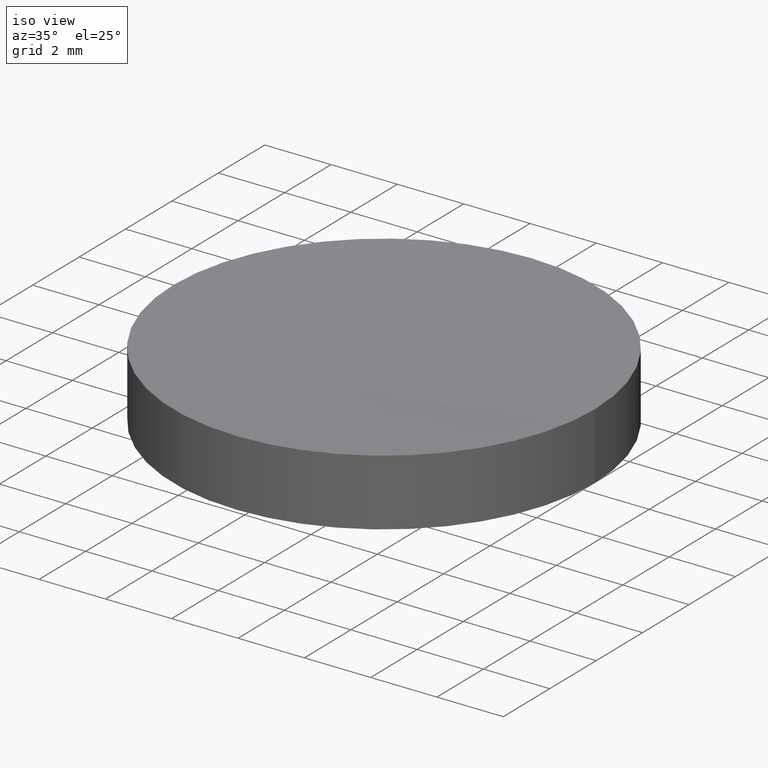
[diagram: clean part render]
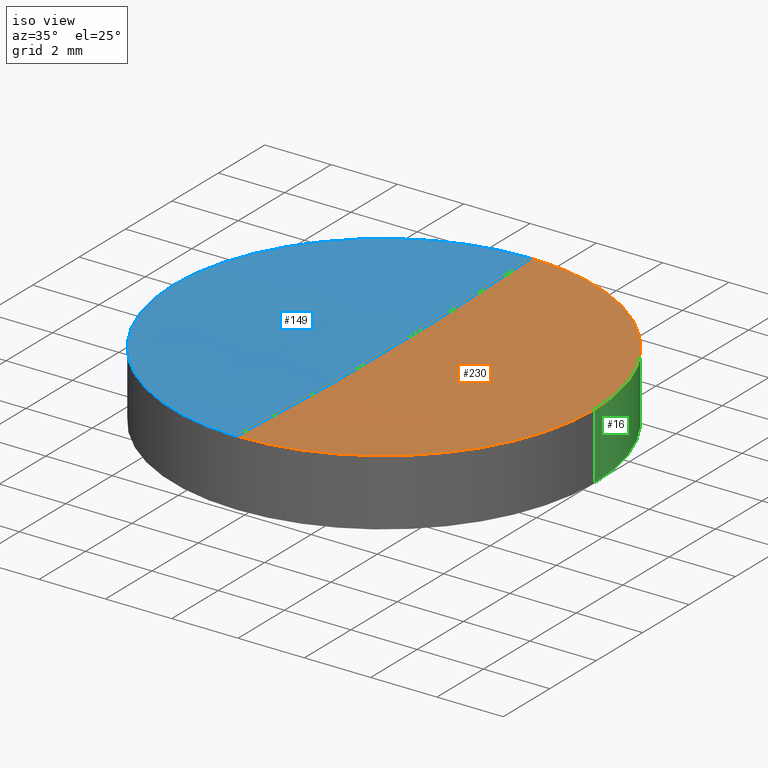
[diagram: same view with three faces highlighted in distinct colors, each labeled with its STEP entity id]
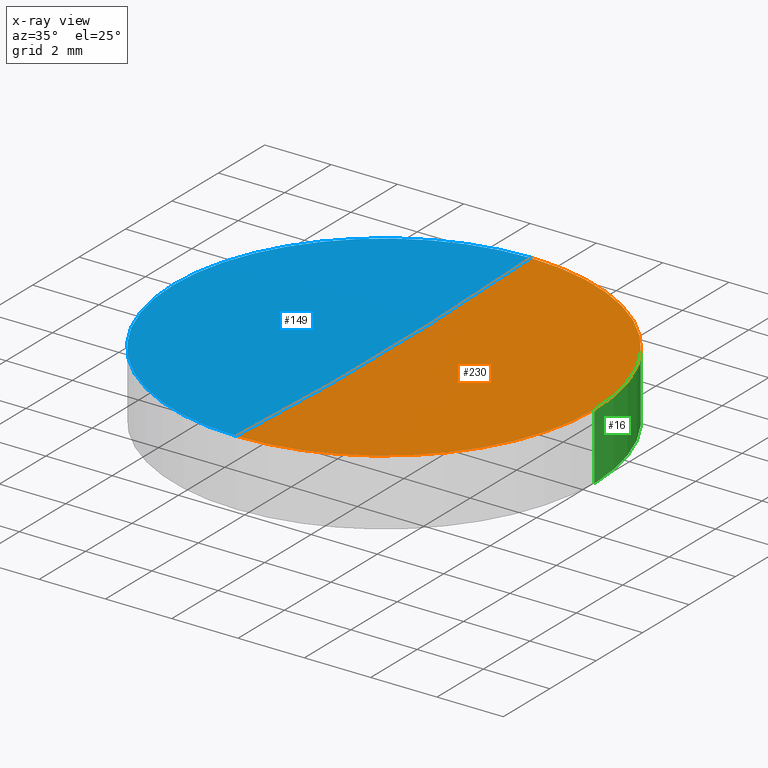
[diagram: x-ray of the same camera — body ghosted, the three highlighted faces saturated]
A machine part, iso view with three faces highlighted in distinct colors.
The next image is the same camera in x-ray (body ghosted, the three faces saturated) — at least one of them is partly hidden behind the body in this view.
Their STEP definitions:

[orange] entity #230 — the highlighted face is a freeform B-spline surface patch.
#2 = CARTESIAN_POINT ( 'NONE',  ( 2.498001805406600200E-016, 1.221245327087670000E-015, 1.855179156040269700 ) ) ;
#5 = ORIENTED_EDGE ( 'NONE', *, *, #58, .F. ) ;
#9 = ORIENTED_EDGE ( 'NONE', *, *, #71, .F. ) ;
#12 = CARTESIAN_POINT ( 'NONE',  ( 2.131297716183690600, 2.143793272918378600, 1.646981777464952700 ) ) ;
#17 = DIRECTION ( 'NONE',  ( -1.000000000000000000, -2.235275075987080100E-016, 4.190856211253810000E-016 ) ) ;
#26 = CARTESIAN_POINT ( 'NONE',  ( -1.036413357444679200E-014, -6.350000000000348700, 1.855179156040272800 ) ) ;
#27 = CIRCLE ( 'NONE', #48, 6.349999999999999600 ) ;
#33 = CARTESIAN_POINT ( 'NONE',  ( 2.131297716183692300, -2.143793272918362200, 1.646981777464952200 ) ) ;
#48 = AXIS2_PLACEMENT_3D ( 'NONE', #84, #256, #109 ) ;
#53 = VERTEX_POINT ( 'NONE', #278 ) ;
#57 = VERTEX_POINT ( 'NONE', #26 ) ;
#58 = EDGE_CURVE ( 'NONE', #53, #188, #141, .T. ) ;
#61 = CARTESIAN_POINT ( 'NONE',  ( 2.168404344971008600E-014, -2.143793272918361700, 1.646981777464952200 ) ) ;
#65 = CARTESIAN_POINT ( 'NONE',  ( 6.349999999999999600, 1.221245327087670000E-015, 1.855179156040269700 ) ) ;
#67 =( BOUNDED_SURFACE ( )  B_SPLINE_SURFACE ( 3, 3, ( 
 ( #287, #202, #197, #267 ),
 ( #291, #151, #12, #77 ),
 ( #180, #126, #33, #61 ),
 ( #224, #156, #229, #73 ) ),
 .UNSPECIFIED., .F., .F., .F. ) 
 B_SPLINE_SURFACE_WITH_KNOTS ( ( 4, 4 ),
 ( 4, 4 ),
 ( 0.0000000000000000000, 1.000000000000000000 ),
 ( 0.0000000000000000000, 1.000000000000000000 ),
 .UNSPECIFIED. ) 
 GEOMETRIC_REPRESENTATION_ITEM ( )  RATIONAL_B_SPLINE_SURFACE ( (
 ( 1.000000000000000000, 0.9997986278994979200, 0.9997986278994979200, 1.000000000000000000),
 ( 0.9991849998050256200, 0.9989837918228247100, 0.9989837918228247100, 0.9991849998050256200),
 ( 0.9991849998050256200, 0.9989837918228247100, 0.9989837918228247100, 0.9991849998050256200),
 ( 1.000000000000000000, 0.9997986278994979200, 0.9997986278994979200, 1.000000000000000000) ) ) 
 REPRESENTATION_ITEM ( '' )  SURFACE ( )  );
#71 = EDGE_CURVE ( 'NONE', #188, #57, #27, .T. ) ;
#73 = CARTESIAN_POINT ( 'NONE',  ( 2.255140518769849200E-014, -6.426138242948860900, 1.858925038019987300 ) ) ;
#77 = CARTESIAN_POINT ( 'NONE',  ( 1.994931997373327800E-014, 2.143793272918377300, 1.646981777464952700 ) ) ;
#84 = CARTESIAN_POINT ( 'NONE',  ( 2.498001805406600200E-016, 1.221245327087670000E-015, 1.855179156040269700 ) ) ;
#109 = DIRECTION ( 'NONE',  ( 1.000000000000000000, 0.0000000000000000000, 0.0000000000000000000 ) ) ;
#119 = AXIS2_PLACEMENT_3D ( 'NONE', #266, #17, #125 ) ;
#125 = DIRECTION ( 'NONE',  ( -2.235275075987079100E-016, 1.000000000000000000, 0.0000000000000000000 ) ) ;
#126 = CARTESIAN_POINT ( 'NONE',  ( 4.261951656520508900, -2.143793272918361700, 1.699362513780250200 ) ) ;
#139 = DIRECTION ( 'NONE',  ( 1.000000000000000000, 1.776356839400250500E-015, 0.0000000000000000000 ) ) ;
#141 = CIRCLE ( 'NONE', #146, 6.349999999999999600 ) ;
#146 = AXIS2_PLACEMENT_3D ( 'NONE', #2, #213, #139 ) ;
#151 = CARTESIAN_POINT ( 'NONE',  ( 4.261951656520507100, 2.143793272918379100, 1.699362513780250600 ) ) ;
#156 = CARTESIAN_POINT ( 'NONE',  ( 4.255006089683564400, -6.426138242948860000, 1.911220411118062600 ) ) ;
#164 = FACE_OUTER_BOUND ( 'NONE', #269, .T. ) ;
#180 = CARTESIAN_POINT ( 'NONE',  ( 6.390674658232239100, -2.143793272918360400, 1.804092342354140000 ) ) ;
#188 = VERTEX_POINT ( 'NONE', #65 ) ;
#197 = CARTESIAN_POINT ( 'NONE',  ( 2.127824408194723300, 6.426138242948876000, 1.858925038019986900 ) ) ;
#198 = CIRCLE ( 'NONE', #119, 130.0000000000000000 ) ;
#202 = CARTESIAN_POINT ( 'NONE',  ( 4.255006089683560900, 6.426138242948876000, 1.911220411118062600 ) ) ;
#213 = DIRECTION ( 'NONE',  ( -0.0000000000000000000, -0.0000000000000000000, -1.000000000000000000 ) ) ;
#224 = CARTESIAN_POINT ( 'NONE',  ( 6.380259979336480900, -6.426138242948859200, 2.015779564826819300 ) ) ;
#229 = CARTESIAN_POINT ( 'NONE',  ( 2.127824408194726800, -6.426138242948860000, 1.858925038019986900 ) ) ;
#230 = ADVANCED_FACE ( 'NONE', ( #164 ), #67, .F. ) ;
#239 = ORIENTED_EDGE ( 'NONE', *, *, #286, .T. ) ;
#256 = DIRECTION ( 'NONE',  ( -0.0000000000000000000, -0.0000000000000000000, -1.000000000000000000 ) ) ;
#266 = CARTESIAN_POINT ( 'NONE',  ( 4.263256414560599900E-014, 1.421085471520200100E-014, 131.6999999999999900 ) ) ;
#267 = CARTESIAN_POINT ( 'NONE',  ( 1.908195823574487800E-014, 6.426138242948876000, 1.858925038019987300 ) ) ;
#269 = EDGE_LOOP ( 'NONE', ( #5, #239, #9 ) ) ;
#278 = CARTESIAN_POINT ( 'NONE',  ( -1.320293292095054300E-014, 6.350000000000362000, 1.855179156040272800 ) ) ;
#286 = EDGE_CURVE ( 'NONE', #53, #57, #198, .T. ) ;
#287 = CARTESIAN_POINT ( 'NONE',  ( 6.380259979336477400, 6.426138242948877800, 2.015779564826819300 ) ) ;
#291 = CARTESIAN_POINT ( 'NONE',  ( 6.390674658232237300, 2.143793272918378600, 1.804092342354140400 ) ) ;

[blue] entity #149 — the highlighted face is a freeform B-spline surface patch.
#4 = CARTESIAN_POINT ( 'NONE',  ( -1.321838206735364000E-014, 6.426138242948876000, 1.858925038019987300 ) ) ;
#8 = AXIS2_PLACEMENT_3D ( 'NONE', #240, #260, #243 ) ;
#10 = CARTESIAN_POINT ( 'NONE',  ( -1.234998254251790300E-014, 2.143793272918376800, 1.646981777464952700 ) ) ;
#11 = CARTESIAN_POINT ( 'NONE',  ( -2.127824408194727300, -6.426138242948861800, 1.858925038019988400 ) ) ;
#17 = DIRECTION ( 'NONE',  ( -1.000000000000000000, -2.235275075987080100E-016, 4.190856211253810000E-016 ) ) ;
#21 = CIRCLE ( 'NONE', #8, 6.349999999999999600 ) ;
#26 = CARTESIAN_POINT ( 'NONE',  ( -1.036413357444679200E-014, -6.350000000000348700, 1.855179156040272800 ) ) ;
#36 = CARTESIAN_POINT ( 'NONE',  ( 2.498001805406600200E-016, 1.221245327087670000E-015, 1.855179156040269700 ) ) ;
#53 = VERTEX_POINT ( 'NONE', #278 ) ;
#55 = CARTESIAN_POINT ( 'NONE',  ( -6.380259979336507600, 6.426138242948874300, 2.015779564826825100 ) ) ;
#57 = VERTEX_POINT ( 'NONE', #26 ) ;
#68 = CARTESIAN_POINT ( 'NONE',  ( -4.255006089683576000, -6.426138242948861800, 1.911220411118066200 ) ) ;
#69 = ORIENTED_EDGE ( 'NONE', *, *, #128, .F. ) ;
#74 = DIRECTION ( 'NONE',  ( 1.000000000000000000, 0.0000000000000000000, 0.0000000000000000000 ) ) ;
#75 = ORIENTED_EDGE ( 'NONE', *, *, #286, .F. ) ;
#80 = CIRCLE ( 'NONE', #152, 6.349999999999999600 ) ;
#94 = CARTESIAN_POINT ( 'NONE',  ( -4.261951656520522200, 2.143793272918376000, 1.699362513780253700 ) ) ;
#96 = FACE_OUTER_BOUND ( 'NONE', #283, .T. ) ;
#100 = DIRECTION ( 'NONE',  ( -0.0000000000000000000, -0.0000000000000000000, -1.000000000000000000 ) ) ;
#117 = CARTESIAN_POINT ( 'NONE',  ( -2.127824408194730000, 6.426138242948874300, 1.858925038019988400 ) ) ;
#119 = AXIS2_PLACEMENT_3D ( 'NONE', #266, #17, #125 ) ;
#120 = CARTESIAN_POINT ( 'NONE',  ( -2.131297716183695000, 2.143793272918376400, 1.646981777464953800 ) ) ;
#122 = CARTESIAN_POINT ( 'NONE',  ( -2.131297716183694100, -2.143793272918362200, 1.646981777464953300 ) ) ;
#125 = DIRECTION ( 'NONE',  ( -2.235275075987079100E-016, 1.000000000000000000, 0.0000000000000000000 ) ) ;
#128 = EDGE_CURVE ( 'NONE', #204, #53, #21, .T. ) ;
#147 = CARTESIAN_POINT ( 'NONE',  ( -6.390674658232265800, -2.143793272918363500, 1.804092342354145700 ) ) ;
#149 = ADVANCED_FACE ( 'NONE', ( #96 ), #288, .F. ) ;
#152 = AXIS2_PLACEMENT_3D ( 'NONE', #36, #100, #74 ) ;
#172 = CARTESIAN_POINT ( 'NONE',  ( -4.261951656520521300, -2.143793272918362600, 1.699362513780253300 ) ) ;
#174 = CARTESIAN_POINT ( 'NONE',  ( -6.380259979336504900, -6.426138242948862700, 2.015779564826825100 ) ) ;
#175 = CARTESIAN_POINT ( 'NONE',  ( -1.034554473749144000E-014, -6.426138242948860900, 1.858925038019987300 ) ) ;
#193 = ORIENTED_EDGE ( 'NONE', *, *, #196, .F. ) ;
#196 = EDGE_CURVE ( 'NONE', #57, #204, #80, .T. ) ;
#198 = CIRCLE ( 'NONE', #119, 130.0000000000000000 ) ;
#200 = CARTESIAN_POINT ( 'NONE',  ( -6.349999999999999600, 1.998896044546239400E-015, 1.855179156040269700 ) ) ;
#204 = VERTEX_POINT ( 'NONE', #200 ) ;
#240 = CARTESIAN_POINT ( 'NONE',  ( 2.498001805406600200E-016, 1.221245327087670000E-015, 1.855179156040269700 ) ) ;
#243 = DIRECTION ( 'NONE',  ( 1.000000000000000000, -8.881784197001252300E-016, 0.0000000000000000000 ) ) ;
#245 = CARTESIAN_POINT ( 'NONE',  ( -4.255006089683578600, 6.426138242948874300, 1.911220411118066200 ) ) ;
#260 = DIRECTION ( 'NONE',  ( -0.0000000000000000000, -0.0000000000000000000, -1.000000000000000000 ) ) ;
#263 = CARTESIAN_POINT ( 'NONE',  ( -1.139158900831326300E-014, -2.143793272918362200, 1.646981777464952200 ) ) ;
#266 = CARTESIAN_POINT ( 'NONE',  ( 4.263256414560599900E-014, 1.421085471520200100E-014, 131.6999999999999900 ) ) ;
#278 = CARTESIAN_POINT ( 'NONE',  ( -1.320293292095054300E-014, 6.350000000000362000, 1.855179156040272800 ) ) ;
#283 = EDGE_LOOP ( 'NONE', ( #75, #69, #193 ) ) ;
#285 = CARTESIAN_POINT ( 'NONE',  ( -6.390674658232266700, 2.143793272918375500, 1.804092342354146200 ) ) ;
#286 = EDGE_CURVE ( 'NONE', #53, #57, #198, .T. ) ;
#288 =( BOUNDED_SURFACE ( )  B_SPLINE_SURFACE ( 3, 3, ( 
 ( #4, #117, #245, #55 ),
 ( #10, #120, #94, #285 ),
 ( #263, #122, #172, #147 ),
 ( #175, #11, #68, #174 ) ),
 .UNSPECIFIED., .F., .F., .F. ) 
 B_SPLINE_SURFACE_WITH_KNOTS ( ( 4, 4 ),
 ( 4, 4 ),
 ( 0.0000000000000000000, 1.000000000000000000 ),
 ( 0.0000000000000000000, 1.000000000000000000 ),
 .UNSPECIFIED. ) 
 GEOMETRIC_REPRESENTATION_ITEM ( )  RATIONAL_B_SPLINE_SURFACE ( (
 ( 1.000000000000000000, 0.9997986278994978000, 0.9997986278994978000, 1.000000000000000000),
 ( 0.9991849998050256200, 0.9989837918228246000, 0.9989837918228246000, 0.9991849998050256200),
 ( 0.9991849998050256200, 0.9989837918228246000, 0.9989837918228246000, 0.9991849998050256200),
 ( 1.000000000000000000, 0.9997986278994978000, 0.9997986278994978000, 1.000000000000000000) ) ) 
 REPRESENTATION_ITEM ( '' )  SURFACE ( )  );

[green] entity #16 — the highlighted cylindrical surface (partial cylindrical patch) has radius 6.35 mm, axis along (0, 0, 1).
#2 = CARTESIAN_POINT ( 'NONE',  ( 2.498001805406600200E-016, 1.221245327087670000E-015, 1.855179156040269700 ) ) ;
#3 = ORIENTED_EDGE ( 'NONE', *, *, #128, .T. ) ;
#8 = AXIS2_PLACEMENT_3D ( 'NONE', #240, #260, #243 ) ;
#13 = LINE ( 'NONE', #23, #89 ) ;
#16 = ADVANCED_FACE ( 'NONE', ( #37 ), #49, .T. ) ;
#21 = CIRCLE ( 'NONE', #8, 6.349999999999999600 ) ;
#23 = CARTESIAN_POINT ( 'NONE',  ( -6.349999999999999600, 1.998896044546239400E-015, -0.1551791560402660000 ) ) ;
#25 = ORIENTED_EDGE ( 'NONE', *, *, #214, .T. ) ;
#31 = EDGE_CURVE ( 'NONE', #225, #63, #181, .T. ) ;
#37 = FACE_OUTER_BOUND ( 'NONE', #166, .T. ) ;
#41 = EDGE_CURVE ( 'NONE', #138, #204, #13, .T. ) ;
#43 = CARTESIAN_POINT ( 'NONE',  ( 2.498001805406600200E-016, 1.221245327087670000E-015, -0.1551791560402660000 ) ) ;
#49 = CYLINDRICAL_SURFACE ( 'NONE', #56, 6.349999999999999600 ) ;
#53 = VERTEX_POINT ( 'NONE', #278 ) ;
#56 = AXIS2_PLACEMENT_3D ( 'NONE', #162, #136, #62 ) ;
#58 = EDGE_CURVE ( 'NONE', #53, #188, #141, .T. ) ;
#62 = DIRECTION ( 'NONE',  ( 1.000000000000000000, 0.0000000000000000000, 0.0000000000000000000 ) ) ;
#63 = VERTEX_POINT ( 'NONE', #209 ) ;
#65 = CARTESIAN_POINT ( 'NONE',  ( 6.349999999999999600, 1.221245327087670000E-015, 1.855179156040269700 ) ) ;
#89 = VECTOR ( 'NONE', #165, 1000.000000000000000 ) ;
#113 = EDGE_CURVE ( 'NONE', #225, #188, #221, .T. ) ;
#116 = CARTESIAN_POINT ( 'NONE',  ( 6.349999999999999600, 1.221245327087670000E-015, -0.1551791560402660000 ) ) ;
#123 = CIRCLE ( 'NONE', #201, 6.349999999999999600 ) ;
#128 = EDGE_CURVE ( 'NONE', #204, #53, #21, .T. ) ;
#131 = ORIENTED_EDGE ( 'NONE', *, *, #41, .T. ) ;
#134 = DIRECTION ( 'NONE',  ( 0.0000000000000000000, 0.0000000000000000000, 1.000000000000000000 ) ) ;
#136 = DIRECTION ( 'NONE',  ( 0.0000000000000000000, 0.0000000000000000000, 1.000000000000000000 ) ) ;
#138 = VERTEX_POINT ( 'NONE', #140 ) ;
#139 = DIRECTION ( 'NONE',  ( 1.000000000000000000, 1.776356839400250500E-015, 0.0000000000000000000 ) ) ;
#140 = CARTESIAN_POINT ( 'NONE',  ( -6.349999999999999600, 1.998896044546239400E-015, -0.1551791560402660000 ) ) ;
#141 = CIRCLE ( 'NONE', #146, 6.349999999999999600 ) ;
#146 = AXIS2_PLACEMENT_3D ( 'NONE', #2, #213, #139 ) ;
#162 = CARTESIAN_POINT ( 'NONE',  ( 2.498001805406600200E-016, 1.221245327087670000E-015, -0.1551791560402660000 ) ) ;
#165 = DIRECTION ( 'NONE',  ( 0.0000000000000000000, 0.0000000000000000000, 1.000000000000000000 ) ) ;
#166 = EDGE_LOOP ( 'NONE', ( #219, #25, #131, #3, #184, #250 ) ) ;
#170 = DIRECTION ( 'NONE',  ( 0.0000000000000000000, 0.0000000000000000000, 1.000000000000000000 ) ) ;
#176 = CARTESIAN_POINT ( 'NONE',  ( 6.349999999999999600, 1.221245327087670000E-015, -0.1551791560402660000 ) ) ;
#177 = DIRECTION ( 'NONE',  ( 1.000000000000000000, 0.0000000000000000000, 0.0000000000000000000 ) ) ;
#181 = CIRCLE ( 'NONE', #237, 6.349999999999999600 ) ;
#184 = ORIENTED_EDGE ( 'NONE', *, *, #58, .T. ) ;
#188 = VERTEX_POINT ( 'NONE', #65 ) ;
#200 = CARTESIAN_POINT ( 'NONE',  ( -6.349999999999999600, 1.998896044546239400E-015, 1.855179156040269700 ) ) ;
#201 = AXIS2_PLACEMENT_3D ( 'NONE', #271, #252, #177 ) ;
#204 = VERTEX_POINT ( 'NONE', #200 ) ;
#209 = CARTESIAN_POINT ( 'NONE',  ( 1.320293292095049300E-014, 6.350000000000090200, -0.1551791560402676400 ) ) ;
#213 = DIRECTION ( 'NONE',  ( -0.0000000000000000000, -0.0000000000000000000, -1.000000000000000000 ) ) ;
#214 = EDGE_CURVE ( 'NONE', #63, #138, #123, .T. ) ;
#216 = VECTOR ( 'NONE', #170, 1000.000000000000000 ) ;
#219 = ORIENTED_EDGE ( 'NONE', *, *, #31, .T. ) ;
#221 = LINE ( 'NONE', #116, #216 ) ;
#225 = VERTEX_POINT ( 'NONE', #176 ) ;
#237 = AXIS2_PLACEMENT_3D ( 'NONE', #43, #134, #259 ) ;
#240 = CARTESIAN_POINT ( 'NONE',  ( 2.498001805406600200E-016, 1.221245327087670000E-015, 1.855179156040269700 ) ) ;
#243 = DIRECTION ( 'NONE',  ( 1.000000000000000000, -8.881784197001252300E-016, 0.0000000000000000000 ) ) ;
#250 = ORIENTED_EDGE ( 'NONE', *, *, #113, .F. ) ;
#252 = DIRECTION ( 'NONE',  ( 0.0000000000000000000, 0.0000000000000000000, 1.000000000000000000 ) ) ;
#259 = DIRECTION ( 'NONE',  ( 1.000000000000000000, 0.0000000000000000000, 0.0000000000000000000 ) ) ;
#260 = DIRECTION ( 'NONE',  ( -0.0000000000000000000, -0.0000000000000000000, -1.000000000000000000 ) ) ;
#271 = CARTESIAN_POINT ( 'NONE',  ( 2.498001805406600200E-016, 1.221245327087670000E-015, -0.1551791560402660000 ) ) ;
#278 = CARTESIAN_POINT ( 'NONE',  ( -1.320293292095054300E-014, 6.350000000000362000, 1.855179156040272800 ) ) ;